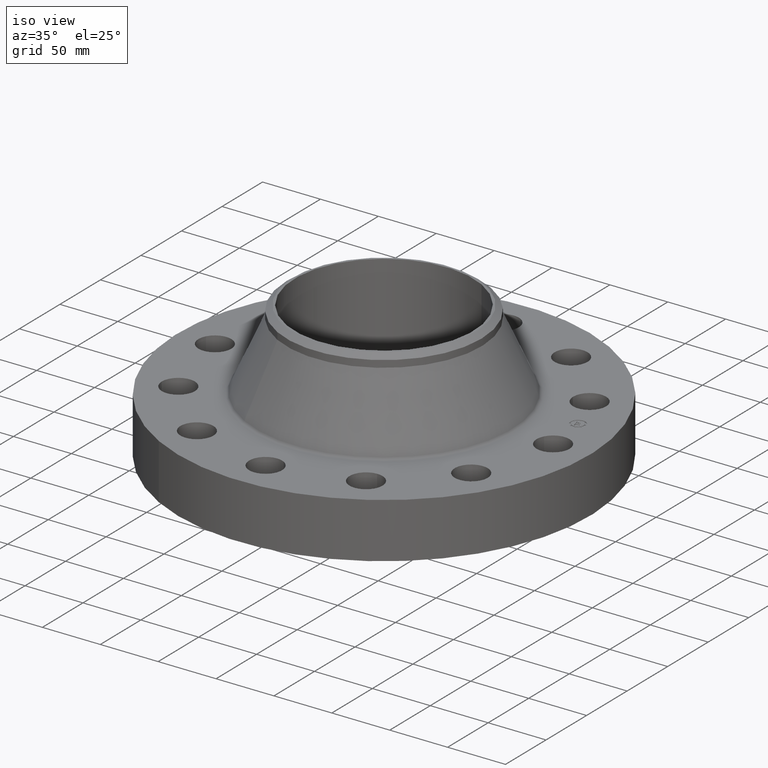
[diagram: clean part render]
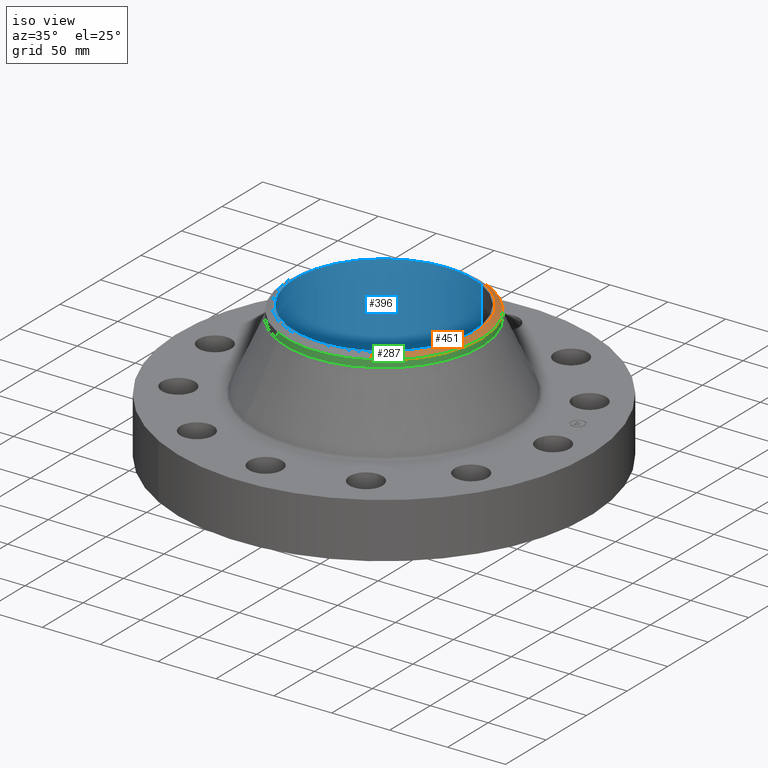
[diagram: same view with three faces highlighted in distinct colors, each labeled with its STEP entity id]
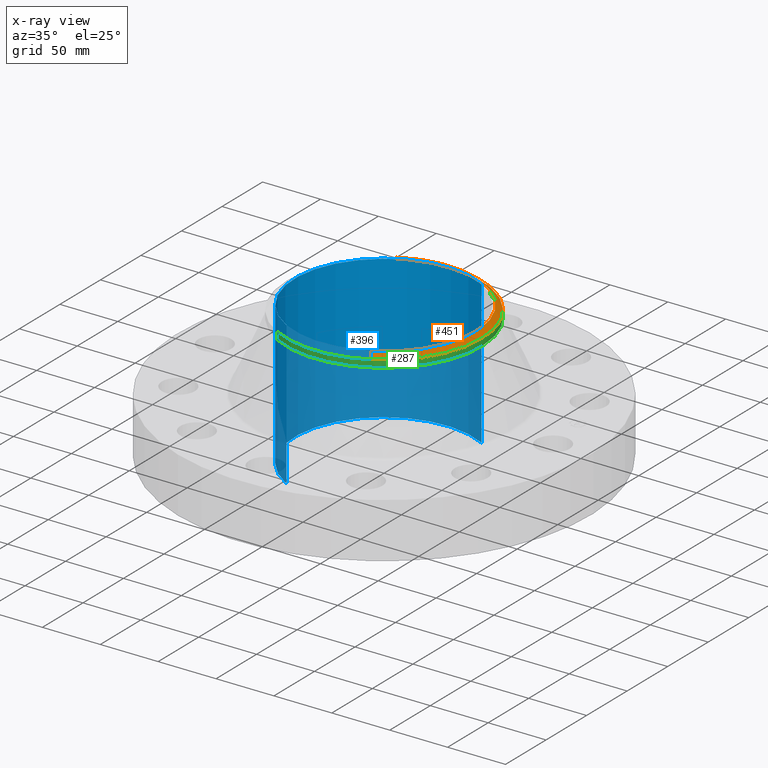
[diagram: x-ray of the same camera — body ghosted, the three highlighted faces saturated]
A machine part, iso view with three faces highlighted in distinct colors.
The next image is the same camera in x-ray (body ghosted, the three faces saturated) — at least one of them is partly hidden behind the body in this view.
Their STEP definitions:

[orange] entity #451 — the highlighted conical surface has half-angle 52.5 deg.
#270=AXIS2_PLACEMENT_3D('Circle Axis2P3D',#268,#269,$) ;
#297=AXIS2_PLACEMENT_3D('Circle Axis2P3D',#295,#296,$) ;
#311=AXIS2_PLACEMENT_3D('Cone Axis2P3D',#308,#309,#310) ;
#432=AXIS2_PLACEMENT_3D('Circle Axis2P3D',#430,#431,$) ;
#265=CARTESIAN_POINT('Vertex',(1.58929566048,2.90918619268,4.46364957379)) ;
#268=CARTESIAN_POINT('Axis2P3D Location',(0.,0.,4.46364957379)) ;
#272=CARTESIAN_POINT('Vertex',(1.58929566048,-2.90918619268,4.46364957379)) ;
#292=CARTESIAN_POINT('Vertex',(-1.58929566048,2.90918619268,4.46364957379)) ;
#295=CARTESIAN_POINT('Axis2P3D Location',(0.,0.,4.46364957379)) ;
#308=CARTESIAN_POINT('Axis2P3D Location',(0.,0.,4.62000000002)) ;
#313=CARTESIAN_POINT('Line Origine',(1.54045182436,-2.81977815037,4.5418247869)) ;
#317=CARTESIAN_POINT('Vertex',(1.49160798823,-2.73037010807,4.62000000002)) ;
#324=CARTESIAN_POINT('Vertex',(-1.49160798823,2.73037010807,4.62000000002)) ;
#327=CARTESIAN_POINT('Line Origine',(-1.54045182436,2.81977815037,4.5418247869)) ;
#430=CARTESIAN_POINT('Axis2P3D Location',(0.,0.,4.62000000002)) ;
#269=DIRECTION('Axis2P3D Direction',(0.,0.,-0.0393700787402)) ;
#296=DIRECTION('Axis2P3D Direction',(0.,0.,-0.0393700787402)) ;
#309=DIRECTION('Axis2P3D Direction',(-0.,-0.,-0.0393700787402)) ;
#310=DIRECTION('Axis2P3D XDirection',(-0.0188750212049,0.0345504945626,0.)) ;
#314=DIRECTION('Vector Direction',(0.014974561121,-0.02741075027,-0.023966985394)) ;
#328=DIRECTION('Vector Direction',(-0.014974561121,0.02741075027,-0.023966985394)) ;
#431=DIRECTION('Axis2P3D Direction',(0.,0.,-0.0393700787402)) ;
#315=VECTOR('Line Direction',#314,0.0393700787402) ;
#329=VECTOR('Line Direction',#328,0.0393700787402) ;
#445=ORIENTED_EDGE('',*,*,#331,.F.) ;
#446=ORIENTED_EDGE('',*,*,#434,.F.) ;
#447=ORIENTED_EDGE('',*,*,#319,.T.) ;
#448=ORIENTED_EDGE('',*,*,#274,.T.) ;
#449=ORIENTED_EDGE('',*,*,#299,.F.) ;
#451=ADVANCED_FACE('PartBody',(#450),#312,.T.) ;
#271=CIRCLE('generated circle',#270,3.31500000001) ;
#298=CIRCLE('generated circle',#297,3.31500000001) ;
#433=CIRCLE('generated circle',#432,3.11124015749) ;
#312=CONICAL_SURFACE('Cone',#311,3.11124015749,0.916297857297) ;
#274=EDGE_CURVE('',#273,#266,#271,.F.) ;
#299=EDGE_CURVE('',#293,#266,#298,.T.) ;
#319=EDGE_CURVE('',#318,#273,#316,.T.) ;
#331=EDGE_CURVE('',#325,#293,#330,.T.) ;
#434=EDGE_CURVE('',#318,#325,#433,.F.) ;
#444=EDGE_LOOP('',(#445,#446,#447,#448,#449)) ;
#450=FACE_OUTER_BOUND('',#444,.T.) ;
#316=LINE('Line',#313,#315) ;
#330=LINE('Line',#327,#329) ;
#266=VERTEX_POINT('',#265) ;
#273=VERTEX_POINT('',#272) ;
#293=VERTEX_POINT('',#292) ;
#318=VERTEX_POINT('',#317) ;
#325=VERTEX_POINT('',#324) ;

[blue] entity #396 — the highlighted cylindrical surface (partial cylindrical patch) has radius 77.0255 mm, axis along (0, 0, -1).
#343=AXIS2_PLACEMENT_3D('Cylinder Axis2P3D',#340,#341,#342) ;
#382=AXIS2_PLACEMENT_3D('Circle Axis2P3D',#380,#381,$) ;
#387=AXIS2_PLACEMENT_3D('Circle Axis2P3D',#385,#386,$) ;
#340=CARTESIAN_POINT('Axis2P3D Location',(0.,0.,2.18500000001)) ;
#349=CARTESIAN_POINT('Vertex',(1.45385794582,2.66126911894,4.62000000002)) ;
#351=CARTESIAN_POINT('Vertex',(-1.45385794582,-2.66126911894,4.62000000002)) ;
#354=CARTESIAN_POINT('Line Origine',(1.45385794582,2.66126911894,2.18500000001)) ;
#358=CARTESIAN_POINT('Vertex',(1.45385794582,2.66126911894,-0.250000000001)) ;
#365=CARTESIAN_POINT('Vertex',(-1.45385794582,-2.66126911894,-0.250000000001)) ;
#368=CARTESIAN_POINT('Line Origine',(-1.45385794582,-2.66126911894,2.18500000001)) ;
#380=CARTESIAN_POINT('Axis2P3D Location',(0.,0.,4.62000000002)) ;
#385=CARTESIAN_POINT('Axis2P3D Location',(0.,0.,-0.250000000001)) ;
#341=DIRECTION('Axis2P3D Direction',(0.,0.,-0.0393700787402)) ;
#342=DIRECTION('Axis2P3D XDirection',(-0.0188750212049,-0.0345504945626,0.)) ;
#355=DIRECTION('Vector Direction',(0.,0.,-0.0393700787402)) ;
#369=DIRECTION('Vector Direction',(0.,0.,-0.0393700787402)) ;
#381=DIRECTION('Axis2P3D Direction',(0.,0.,-0.0393700787402)) ;
#386=DIRECTION('Axis2P3D Direction',(0.,0.,-0.0393700787402)) ;
#356=VECTOR('Line Direction',#355,0.0393700787402) ;
#370=VECTOR('Line Direction',#369,0.0393700787402) ;
#391=ORIENTED_EDGE('',*,*,#384,.F.) ;
#392=ORIENTED_EDGE('',*,*,#372,.T.) ;
#393=ORIENTED_EDGE('',*,*,#389,.T.) ;
#394=ORIENTED_EDGE('',*,*,#360,.F.) ;
#396=ADVANCED_FACE('PartBody',(#395),#344,.F.) ;
#383=CIRCLE('generated circle',#382,3.03250000001) ;
#388=CIRCLE('generated circle',#387,3.03250000001) ;
#344=CYLINDRICAL_SURFACE('generated cylinder',#343,3.03250000001) ;
#360=EDGE_CURVE('',#350,#359,#357,.T.) ;
#372=EDGE_CURVE('',#352,#366,#371,.T.) ;
#384=EDGE_CURVE('',#352,#350,#383,.T.) ;
#389=EDGE_CURVE('',#366,#359,#388,.T.) ;
#390=EDGE_LOOP('',(#391,#392,#393,#394)) ;
#395=FACE_OUTER_BOUND('',#390,.T.) ;
#357=LINE('Line',#354,#356) ;
#371=LINE('Line',#368,#370) ;
#350=VERTEX_POINT('',#349) ;
#352=VERTEX_POINT('',#351) ;
#359=VERTEX_POINT('',#358) ;
#366=VERTEX_POINT('',#365) ;

[green] entity #287 — the highlighted cylindrical surface (partial cylindrical patch) has radius 84.201 mm, axis along (0, 0, -1).
#220=AXIS2_PLACEMENT_3D('Circle Axis2P3D',#218,#219,$) ;
#252=AXIS2_PLACEMENT_3D('Cylinder Axis2P3D',#249,#250,#251) ;
#270=AXIS2_PLACEMENT_3D('Circle Axis2P3D',#268,#269,$) ;
#277=AXIS2_PLACEMENT_3D('Circle Axis2P3D',#275,#276,$) ;
#215=CARTESIAN_POINT('Vertex',(1.58929566048,2.90918619268,4.22742910134)) ;
#218=CARTESIAN_POINT('Axis2P3D Location',(0.,0.,4.22742910134)) ;
#222=CARTESIAN_POINT('Vertex',(-1.58929566048,-2.90918619268,4.22742910134)) ;
#249=CARTESIAN_POINT('Axis2P3D Location',(0.,0.,2.18500000001)) ;
#254=CARTESIAN_POINT('Line Origine',(-1.58929566048,-2.90918619268,4.34553933757)) ;
#258=CARTESIAN_POINT('Vertex',(-1.58929566048,-2.90918619268,4.46364957379)) ;
#261=CARTESIAN_POINT('Line Origine',(1.58929566048,2.90918619268,4.34553933757)) ;
#265=CARTESIAN_POINT('Vertex',(1.58929566048,2.90918619268,4.46364957379)) ;
#268=CARTESIAN_POINT('Axis2P3D Location',(0.,0.,4.46364957379)) ;
#272=CARTESIAN_POINT('Vertex',(1.58929566048,-2.90918619268,4.46364957379)) ;
#275=CARTESIAN_POINT('Axis2P3D Location',(0.,0.,4.46364957379)) ;
#219=DIRECTION('Axis2P3D Direction',(0.,0.,-0.0393700787402)) ;
#250=DIRECTION('Axis2P3D Direction',(0.,0.,-0.0393700787402)) ;
#251=DIRECTION('Axis2P3D XDirection',(-0.0188750212049,-0.0345504945626,0.)) ;
#255=DIRECTION('Vector Direction',(0.,0.,-0.0393700787402)) ;
#262=DIRECTION('Vector Direction',(0.,0.,-0.0393700787402)) ;
#269=DIRECTION('Axis2P3D Direction',(0.,0.,-0.0393700787402)) ;
#276=DIRECTION('Axis2P3D Direction',(0.,0.,-0.0393700787402)) ;
#256=VECTOR('Line Direction',#255,0.0393700787402) ;
#263=VECTOR('Line Direction',#262,0.0393700787402) ;
#281=ORIENTED_EDGE('',*,*,#260,.F.) ;
#282=ORIENTED_EDGE('',*,*,#224,.F.) ;
#283=ORIENTED_EDGE('',*,*,#267,.T.) ;
#284=ORIENTED_EDGE('',*,*,#274,.F.) ;
#285=ORIENTED_EDGE('',*,*,#279,.T.) ;
#287=ADVANCED_FACE('PartBody',(#286),#253,.T.) ;
#221=CIRCLE('generated circle',#220,3.31500000001) ;
#271=CIRCLE('generated circle',#270,3.31500000001) ;
#278=CIRCLE('generated circle',#277,3.31500000001) ;
#253=CYLINDRICAL_SURFACE('generated cylinder',#252,3.31500000001) ;
#224=EDGE_CURVE('',#216,#223,#221,.T.) ;
#260=EDGE_CURVE('',#223,#259,#257,.F.) ;
#267=EDGE_CURVE('',#216,#266,#264,.F.) ;
#274=EDGE_CURVE('',#273,#266,#271,.F.) ;
#279=EDGE_CURVE('',#273,#259,#278,.T.) ;
#280=EDGE_LOOP('',(#281,#282,#283,#284,#285)) ;
#286=FACE_OUTER_BOUND('',#280,.T.) ;
#257=LINE('Line',#254,#256) ;
#264=LINE('Line',#261,#263) ;
#216=VERTEX_POINT('',#215) ;
#223=VERTEX_POINT('',#222) ;
#259=VERTEX_POINT('',#258) ;
#266=VERTEX_POINT('',#265) ;
#273=VERTEX_POINT('',#272) ;